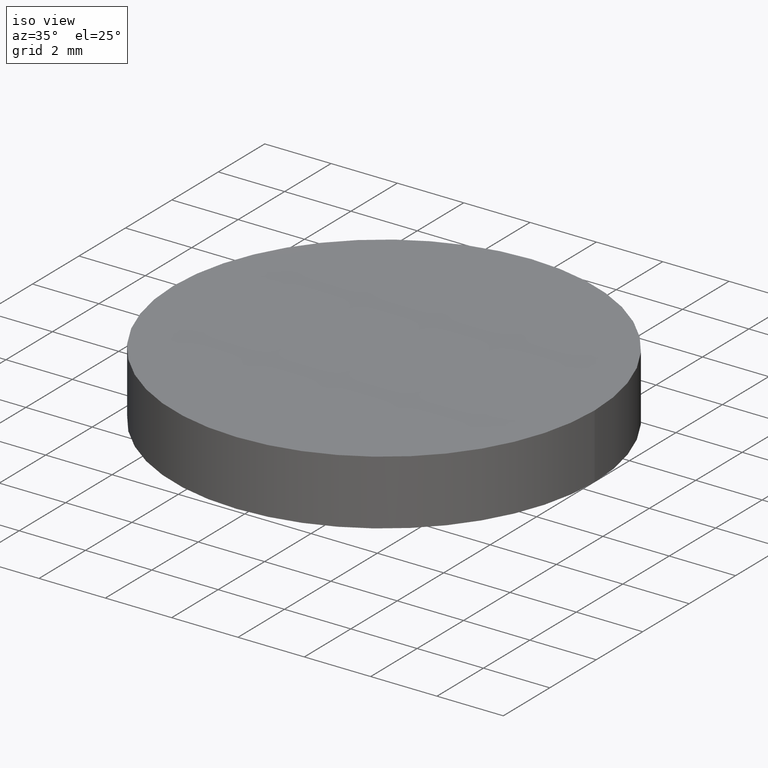
[diagram: clean part render]
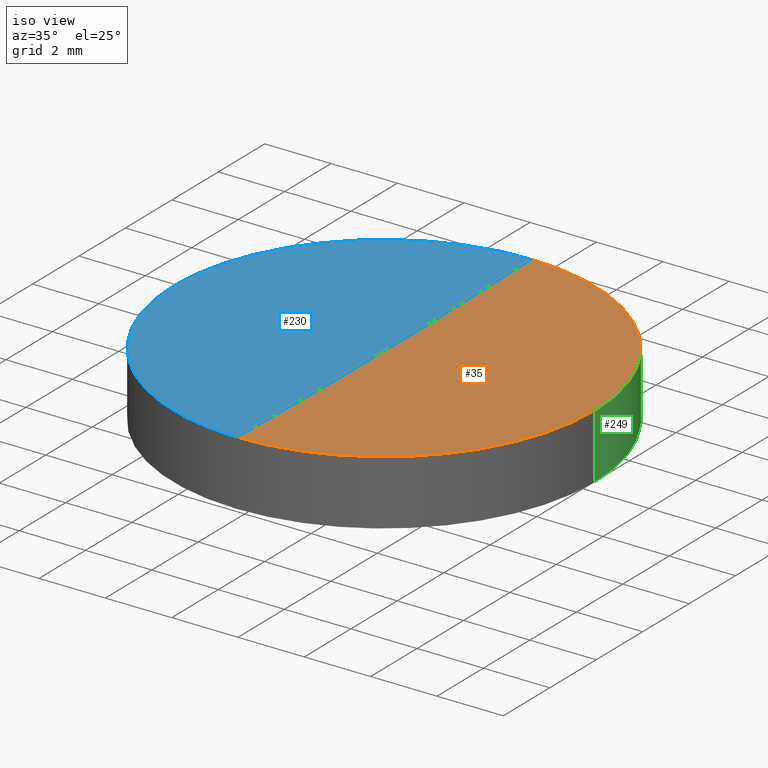
[diagram: same view with three faces highlighted in distinct colors, each labeled with its STEP entity id]
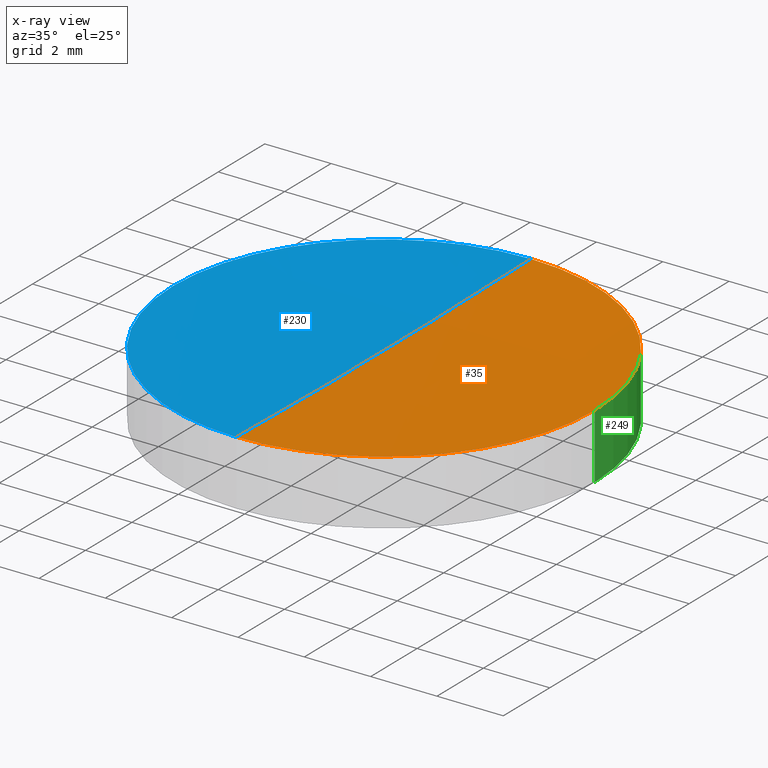
[diagram: x-ray of the same camera — body ghosted, the three highlighted faces saturated]
A machine part, iso view with three faces highlighted in distinct colors.
The next image is the same camera in x-ray (body ghosted, the three faces saturated) — at least one of them is partly hidden behind the body in this view.
Their STEP definitions:

[orange] entity #35 — the highlighted face is a freeform B-spline surface patch.
#15 = CARTESIAN_POINT ( 'NONE',  ( 2.128980519806762000, 6.426184536089197200, 1.879519004551348300 ) ) ;
#18 = DIRECTION ( 'NONE',  ( -1.000000000000000000, -2.237857218932010100E-016, -3.277692368538199900E-017 ) ) ;
#21 = CARTESIAN_POINT ( 'NONE',  ( 9.519578976003125300E-014, -6.349999999999807800, 1.877644452562605000 ) ) ;
#30 = CIRCLE ( 'NONE', #159, 259.6999999999999900 ) ;
#35 = ADVANCED_FACE ( 'NONE', ( #155 ), #279, .F. ) ;
#36 = CARTESIAN_POINT ( 'NONE',  ( 2.129850009775577000, -2.142498861219059000, 1.773488253295633300 ) ) ;
#39 = DIRECTION ( 'NONE',  ( -2.237857218932010100E-016, 1.000000000000000000, 0.0000000000000000000 ) ) ;
#42 = CARTESIAN_POINT ( 'NONE',  ( 8.526512829121199700E-014, 0.0000000000000000000, 261.5000000000000000 ) ) ;
#57 = CARTESIAN_POINT ( 'NONE',  ( 6.388744471906481000, 2.142498861219036800, 1.852075209171677700 ) ) ;
#58 = CARTESIAN_POINT ( 'NONE',  ( 6.386136330860806800, -6.426184536089219400, 1.958073878088495400 ) ) ;
#66 = DIRECTION ( 'NONE',  ( -0.0000000000000000000, -0.0000000000000000000, -1.000000000000000000 ) ) ;
#81 = CARTESIAN_POINT ( 'NONE',  ( 1.569924745759010700E-013, -2.142498861219059900, 1.773488253295632600 ) ) ;
#84 = CARTESIAN_POINT ( 'NONE',  ( 6.386136330860803200, 6.426184536089198000, 1.958073878088495400 ) ) ;
#86 = CARTESIAN_POINT ( 'NONE',  ( 4.259538903191835100, 2.142498861219035900, 1.799685226399288900 ) ) ;
#88 = DIRECTION ( 'NONE',  ( 1.000000000000000000, 0.0000000000000000000, 0.0000000000000000000 ) ) ;
#100 = EDGE_CURVE ( 'NONE', #131, #222, #238, .T. ) ;
#108 = CARTESIAN_POINT ( 'NONE',  ( 1.578598363138894500E-013, -6.426184536089221100, 1.879519004551347900 ) ) ;
#112 = DIRECTION ( 'NONE',  ( -0.0000000000000000000, -0.0000000000000000000, -1.000000000000000000 ) ) ;
#116 = ORIENTED_EDGE ( 'NONE', *, *, #178, .T. ) ;
#131 = VERTEX_POINT ( 'NONE', #201 ) ;
#135 = CARTESIAN_POINT ( 'NONE',  ( 1.561251128379126400E-013, 2.142498861219035400, 1.773488253295633100 ) ) ;
#155 = FACE_OUTER_BOUND ( 'NONE', #257, .T. ) ;
#159 = AXIS2_PLACEMENT_3D ( 'NONE', #42, #18, #39 ) ;
#176 = CIRCLE ( 'NONE', #243, 6.349999999999999600 ) ;
#178 = EDGE_CURVE ( 'NONE', #227, #222, #30, .T. ) ;
#190 = DIRECTION ( 'NONE',  ( 1.000000000000000000, -8.881784197001252300E-016, 0.0000000000000000000 ) ) ;
#195 = EDGE_CURVE ( 'NONE', #227, #131, #176, .T. ) ;
#200 = CARTESIAN_POINT ( 'NONE',  ( 4.259538903191835100, -2.142498861219058500, 1.799685226399288400 ) ) ;
#201 = CARTESIAN_POINT ( 'NONE',  ( 6.349999999999999600, 1.221245327087670000E-015, 1.877644452562599900 ) ) ;
#211 = ORIENTED_EDGE ( 'NONE', *, *, #100, .F. ) ;
#222 = VERTEX_POINT ( 'NONE', #21 ) ;
#223 = CARTESIAN_POINT ( 'NONE',  ( 6.388744471906481900, -2.142498861219058500, 1.852075209171677200 ) ) ;
#225 = CARTESIAN_POINT ( 'NONE',  ( 1.543903893619358300E-013, 6.426184536089196300, 1.879519004551347900 ) ) ;
#227 = VERTEX_POINT ( 'NONE', #239 ) ;
#228 = CARTESIAN_POINT ( 'NONE',  ( 2.498001805406600200E-016, 1.221245327087670000E-015, 1.877644452562599900 ) ) ;
#238 = CIRCLE ( 'NONE', #293, 6.349999999999999600 ) ;
#239 = CARTESIAN_POINT ( 'NONE',  ( 9.235371109198768200E-014, 6.349999999999808700, 1.877644452562605000 ) ) ;
#243 = AXIS2_PLACEMENT_3D ( 'NONE', #261, #66, #190 ) ;
#248 = CARTESIAN_POINT ( 'NONE',  ( 2.128980519806765500, -6.426184536089220200, 1.879519004551348300 ) ) ;
#251 = CARTESIAN_POINT ( 'NONE',  ( 2.129850009775576100, 2.142498861219035400, 1.773488253295633800 ) ) ;
#252 = ORIENTED_EDGE ( 'NONE', *, *, #195, .F. ) ;
#253 = CARTESIAN_POINT ( 'NONE',  ( 4.257799989028353800, -6.426184536089220200, 1.905705283002693700 ) ) ;
#257 = EDGE_LOOP ( 'NONE', ( #252, #116, #211 ) ) ;
#261 = CARTESIAN_POINT ( 'NONE',  ( 2.498001805406600200E-016, 1.221245327087670000E-015, 1.877644452562599900 ) ) ;
#272 = CARTESIAN_POINT ( 'NONE',  ( 4.257799989028350200, 6.426184536089197200, 1.905705283002693700 ) ) ;
#279 =( BOUNDED_SURFACE ( )  B_SPLINE_SURFACE ( 3, 3, ( 
 ( #84, #272, #15, #225 ),
 ( #57, #86, #251, #135 ),
 ( #223, #200, #36, #81 ),
 ( #58, #253, #248, #108 ) ),
 .UNSPECIFIED., .F., .F., .F. ) 
 B_SPLINE_SURFACE_WITH_KNOTS ( ( 4, 4 ),
 ( 4, 4 ),
 ( 0.0000000000000000000, 1.000000000000000000 ),
 ( 0.0000000000000000000, 1.000000000000000000 ),
 .UNSPECIFIED. ) 
 GEOMETRIC_REPRESENTATION_ITEM ( )  RATIONAL_B_SPLINE_SURFACE ( (
 ( 1.000000000000000000, 0.9999495687932881100, 0.9999495687932881100, 1.000000000000000000),
 ( 0.9997958695814366200, 0.9997454486692680700, 0.9997454486692680700, 0.9997958695814366200),
 ( 0.9997958695814366200, 0.9997454486692680700, 0.9997454486692680700, 0.9997958695814366200),
 ( 1.000000000000000000, 0.9999495687932881100, 0.9999495687932881100, 1.000000000000000000) ) ) 
 REPRESENTATION_ITEM ( '' )  SURFACE ( )  );
#293 = AXIS2_PLACEMENT_3D ( 'NONE', #228, #112, #88 ) ;

[blue] entity #230 — the highlighted face is a freeform B-spline surface patch.
#8 = AXIS2_PLACEMENT_3D ( 'NONE', #32, #264, #73 ) ;
#10 = CARTESIAN_POINT ( 'NONE',  ( -4.259538903191590900, -2.142498861219060700, 1.799685226399271100 ) ) ;
#12 = VERTEX_POINT ( 'NONE', #107 ) ;
#18 = DIRECTION ( 'NONE',  ( -1.000000000000000000, -2.237857218932010100E-016, -3.277692368538199900E-017 ) ) ;
#21 = CARTESIAN_POINT ( 'NONE',  ( 9.519578976003125300E-014, -6.349999999999807800, 1.877644452562605000 ) ) ;
#28 = CARTESIAN_POINT ( 'NONE',  ( -6.388744471906244700, 2.142498861219033700, 1.852075209171659700 ) ) ;
#30 = CIRCLE ( 'NONE', #159, 259.6999999999999900 ) ;
#32 = CARTESIAN_POINT ( 'NONE',  ( 2.498001805406600200E-016, 1.221245327087670000E-015, 1.877644452562599900 ) ) ;
#37 = ORIENTED_EDGE ( 'NONE', *, *, #233, .F. ) ;
#39 = DIRECTION ( 'NONE',  ( -2.237857218932010100E-016, 1.000000000000000000, 0.0000000000000000000 ) ) ;
#42 = CARTESIAN_POINT ( 'NONE',  ( 8.526512829121199700E-014, 0.0000000000000000000, 261.5000000000000000 ) ) ;
#43 = CARTESIAN_POINT ( 'NONE',  ( 9.233660063853434100E-014, 6.426184536089196300, 1.879519004551355500 ) ) ;
#46 = CARTESIAN_POINT ( 'NONE',  ( -2.128980519806519500, 6.426184536089195400, 1.879519004551355500 ) ) ;
#51 = CARTESIAN_POINT ( 'NONE',  ( -6.388744471906243800, -2.142498861219061600, 1.852075209171659200 ) ) ;
#61 = DIRECTION ( 'NONE',  ( -0.0000000000000000000, -0.0000000000000000000, -1.000000000000000000 ) ) ;
#73 = DIRECTION ( 'NONE',  ( 1.000000000000000000, 0.0000000000000000000, 0.0000000000000000000 ) ) ;
#78 = CARTESIAN_POINT ( 'NONE',  ( -2.129850009775330100, -2.142498861219060300, 1.773488253295640400 ) ) ;
#96 = CARTESIAN_POINT ( 'NONE',  ( -6.386136330860569600, 6.426184536089194500, 1.958073878088477200 ) ) ;
#107 = CARTESIAN_POINT ( 'NONE',  ( -6.349999999999999600, 1.998896044546239400E-015, 1.877644452562599900 ) ) ;
#117 = CARTESIAN_POINT ( 'NONE',  ( 2.498001805406600200E-016, 1.221245327087670000E-015, 1.877644452562599900 ) ) ;
#128 = CARTESIAN_POINT ( 'NONE',  ( 9.521277732938964500E-014, -6.426184536089221100, 1.879519004551355500 ) ) ;
#147 = EDGE_CURVE ( 'NONE', #222, #12, #234, .T. ) ;
#149 = ORIENTED_EDGE ( 'NONE', *, *, #178, .F. ) ;
#152 = CIRCLE ( 'NONE', #8, 6.349999999999999600 ) ;
#154 = CARTESIAN_POINT ( 'NONE',  ( -2.128980519806516400, -6.426184536089222000, 1.879519004551355500 ) ) ;
#157 = EDGE_LOOP ( 'NONE', ( #149, #37, #162 ) ) ;
#159 = AXIS2_PLACEMENT_3D ( 'NONE', #42, #18, #39 ) ;
#162 = ORIENTED_EDGE ( 'NONE', *, *, #147, .F. ) ;
#171 = CARTESIAN_POINT ( 'NONE',  ( 9.425762500011747000E-014, -2.142498861219060300, 1.773488253295640200 ) ) ;
#178 = EDGE_CURVE ( 'NONE', #227, #222, #30, .T. ) ;
#181 = DIRECTION ( 'NONE',  ( 1.000000000000000000, 0.0000000000000000000, 0.0000000000000000000 ) ) ;
#193 = CARTESIAN_POINT ( 'NONE',  ( -6.386136330860566100, -6.426184536089222900, 1.958073878088477200 ) ) ;
#222 = VERTEX_POINT ( 'NONE', #21 ) ;
#224 =( BOUNDED_SURFACE ( )  B_SPLINE_SURFACE ( 3, 3, ( 
 ( #43, #46, #240, #96 ),
 ( #235, #286, #268, #28 ),
 ( #171, #78, #10, #51 ),
 ( #128, #154, #263, #193 ) ),
 .UNSPECIFIED., .F., .F., .F. ) 
 B_SPLINE_SURFACE_WITH_KNOTS ( ( 4, 4 ),
 ( 4, 4 ),
 ( 0.0000000000000000000, 1.000000000000000000 ),
 ( 0.0000000000000000000, 1.000000000000000000 ),
 .UNSPECIFIED. ) 
 GEOMETRIC_REPRESENTATION_ITEM ( )  RATIONAL_B_SPLINE_SURFACE ( (
 ( 1.000000000000000000, 0.9999495687932881100, 0.9999495687932881100, 1.000000000000000000),
 ( 0.9997958695814366200, 0.9997454486692680700, 0.9997454486692680700, 0.9997958695814366200),
 ( 0.9997958695814366200, 0.9997454486692680700, 0.9997454486692680700, 0.9997958695814366200),
 ( 1.000000000000000000, 0.9999495687932881100, 0.9999495687932881100, 1.000000000000000000) ) ) 
 REPRESENTATION_ITEM ( '' )  SURFACE ( )  );
#227 = VERTEX_POINT ( 'NONE', #239 ) ;
#230 = ADVANCED_FACE ( 'NONE', ( #232 ), #224, .F. ) ;
#232 = FACE_OUTER_BOUND ( 'NONE', #157, .T. ) ;
#233 = EDGE_CURVE ( 'NONE', #12, #227, #152, .T. ) ;
#234 = CIRCLE ( 'NONE', #269, 6.349999999999999600 ) ;
#235 = CARTESIAN_POINT ( 'NONE',  ( 9.329870369149094900E-014, 2.142498861219035000, 1.773488253295640600 ) ) ;
#239 = CARTESIAN_POINT ( 'NONE',  ( 9.235371109198768200E-014, 6.349999999999808700, 1.877644452562605000 ) ) ;
#240 = CARTESIAN_POINT ( 'NONE',  ( -4.257799989028111300, 6.426184536089195400, 1.905705283002675900 ) ) ;
#263 = CARTESIAN_POINT ( 'NONE',  ( -4.257799989028107700, -6.426184536089222000, 1.905705283002675900 ) ) ;
#264 = DIRECTION ( 'NONE',  ( -0.0000000000000000000, -0.0000000000000000000, -1.000000000000000000 ) ) ;
#268 = CARTESIAN_POINT ( 'NONE',  ( -4.259538903191592700, 2.142498861219033700, 1.799685226399271500 ) ) ;
#269 = AXIS2_PLACEMENT_3D ( 'NONE', #117, #61, #181 ) ;
#286 = CARTESIAN_POINT ( 'NONE',  ( -2.129850009775331000, 2.142498861219034100, 1.773488253295640600 ) ) ;

[green] entity #249 — the highlighted cylindrical surface (partial cylindrical patch) has radius 6.35 mm, axis along (0, 0, 1).
#1 = DIRECTION ( 'NONE',  ( 1.000000000000000000, 0.0000000000000000000, 0.0000000000000000000 ) ) ;
#4 = ORIENTED_EDGE ( 'NONE', *, *, #233, .T. ) ;
#5 = CARTESIAN_POINT ( 'NONE',  ( 6.349999999999999600, 1.221245327087670000E-015, -0.07764445256259830400 ) ) ;
#8 = AXIS2_PLACEMENT_3D ( 'NONE', #32, #264, #73 ) ;
#12 = VERTEX_POINT ( 'NONE', #107 ) ;
#17 = DIRECTION ( 'NONE',  ( 0.0000000000000000000, 0.0000000000000000000, 1.000000000000000000 ) ) ;
#32 = CARTESIAN_POINT ( 'NONE',  ( 2.498001805406600200E-016, 1.221245327087670000E-015, 1.877644452562599900 ) ) ;
#33 = ORIENTED_EDGE ( 'NONE', *, *, #163, .F. ) ;
#38 = EDGE_CURVE ( 'NONE', #197, #12, #202, .T. ) ;
#41 = EDGE_LOOP ( 'NONE', ( #188, #246, #266, #4, #288, #33 ) ) ;
#50 = EDGE_CURVE ( 'NONE', #103, #197, #87, .T. ) ;
#56 = CARTESIAN_POINT ( 'NONE',  ( -9.235371109198769400E-014, 6.349999999999808700, -0.07764445256259233700 ) ) ;
#66 = DIRECTION ( 'NONE',  ( -0.0000000000000000000, -0.0000000000000000000, -1.000000000000000000 ) ) ;
#68 = VECTOR ( 'NONE', #138, 1000.000000000000000 ) ;
#71 = DIRECTION ( 'NONE',  ( 0.0000000000000000000, 0.0000000000000000000, 1.000000000000000000 ) ) ;
#73 = DIRECTION ( 'NONE',  ( 1.000000000000000000, 0.0000000000000000000, 0.0000000000000000000 ) ) ;
#80 = CARTESIAN_POINT ( 'NONE',  ( -6.349999999999999600, 1.998896044546239400E-015, -0.07764445256259830400 ) ) ;
#87 = CIRCLE ( 'NONE', #208, 6.349999999999999600 ) ;
#91 = LINE ( 'NONE', #113, #180 ) ;
#101 = DIRECTION ( 'NONE',  ( 1.000000000000000000, 0.0000000000000000000, 0.0000000000000000000 ) ) ;
#103 = VERTEX_POINT ( 'NONE', #56 ) ;
#107 = CARTESIAN_POINT ( 'NONE',  ( -6.349999999999999600, 1.998896044546239400E-015, 1.877644452562599900 ) ) ;
#113 = CARTESIAN_POINT ( 'NONE',  ( 6.349999999999999600, 1.221245327087670000E-015, -0.07764445256259830400 ) ) ;
#126 = AXIS2_PLACEMENT_3D ( 'NONE', #205, #17, #1 ) ;
#131 = VERTEX_POINT ( 'NONE', #201 ) ;
#134 = CARTESIAN_POINT ( 'NONE',  ( 2.498001805406600200E-016, 1.221245327087670000E-015, -0.07764445256259830400 ) ) ;
#136 = EDGE_CURVE ( 'NONE', #219, #103, #292, .T. ) ;
#138 = DIRECTION ( 'NONE',  ( 0.0000000000000000000, 0.0000000000000000000, 1.000000000000000000 ) ) ;
#143 = AXIS2_PLACEMENT_3D ( 'NONE', #259, #71, #101 ) ;
#152 = CIRCLE ( 'NONE', #8, 6.349999999999999600 ) ;
#153 = FACE_OUTER_BOUND ( 'NONE', #41, .T. ) ;
#163 = EDGE_CURVE ( 'NONE', #219, #131, #91, .T. ) ;
#176 = CIRCLE ( 'NONE', #243, 6.349999999999999600 ) ;
#180 = VECTOR ( 'NONE', #275, 1000.000000000000000 ) ;
#188 = ORIENTED_EDGE ( 'NONE', *, *, #136, .T. ) ;
#190 = DIRECTION ( 'NONE',  ( 1.000000000000000000, -8.881784197001252300E-016, 0.0000000000000000000 ) ) ;
#191 = CARTESIAN_POINT ( 'NONE',  ( -6.349999999999999600, 1.998896044546239400E-015, -0.07764445256259830400 ) ) ;
#195 = EDGE_CURVE ( 'NONE', #227, #131, #176, .T. ) ;
#197 = VERTEX_POINT ( 'NONE', #191 ) ;
#201 = CARTESIAN_POINT ( 'NONE',  ( 6.349999999999999600, 1.221245327087670000E-015, 1.877644452562599900 ) ) ;
#202 = LINE ( 'NONE', #80, #68 ) ;
#205 = CARTESIAN_POINT ( 'NONE',  ( 2.498001805406600200E-016, 1.221245327087670000E-015, -0.07764445256259830400 ) ) ;
#208 = AXIS2_PLACEMENT_3D ( 'NONE', #134, #247, #291 ) ;
#219 = VERTEX_POINT ( 'NONE', #5 ) ;
#227 = VERTEX_POINT ( 'NONE', #239 ) ;
#233 = EDGE_CURVE ( 'NONE', #12, #227, #152, .T. ) ;
#239 = CARTESIAN_POINT ( 'NONE',  ( 9.235371109198768200E-014, 6.349999999999808700, 1.877644452562605000 ) ) ;
#243 = AXIS2_PLACEMENT_3D ( 'NONE', #261, #66, #190 ) ;
#244 = CYLINDRICAL_SURFACE ( 'NONE', #143, 6.349999999999999600 ) ;
#246 = ORIENTED_EDGE ( 'NONE', *, *, #50, .T. ) ;
#247 = DIRECTION ( 'NONE',  ( 0.0000000000000000000, 0.0000000000000000000, 1.000000000000000000 ) ) ;
#249 = ADVANCED_FACE ( 'NONE', ( #153 ), #244, .T. ) ;
#259 = CARTESIAN_POINT ( 'NONE',  ( 2.498001805406600200E-016, 1.221245327087670000E-015, -0.07764445256259830400 ) ) ;
#261 = CARTESIAN_POINT ( 'NONE',  ( 2.498001805406600200E-016, 1.221245327087670000E-015, 1.877644452562599900 ) ) ;
#264 = DIRECTION ( 'NONE',  ( -0.0000000000000000000, -0.0000000000000000000, -1.000000000000000000 ) ) ;
#266 = ORIENTED_EDGE ( 'NONE', *, *, #38, .T. ) ;
#275 = DIRECTION ( 'NONE',  ( 0.0000000000000000000, 0.0000000000000000000, 1.000000000000000000 ) ) ;
#288 = ORIENTED_EDGE ( 'NONE', *, *, #195, .T. ) ;
#291 = DIRECTION ( 'NONE',  ( 1.000000000000000000, 0.0000000000000000000, 0.0000000000000000000 ) ) ;
#292 = CIRCLE ( 'NONE', #126, 6.349999999999999600 ) ;